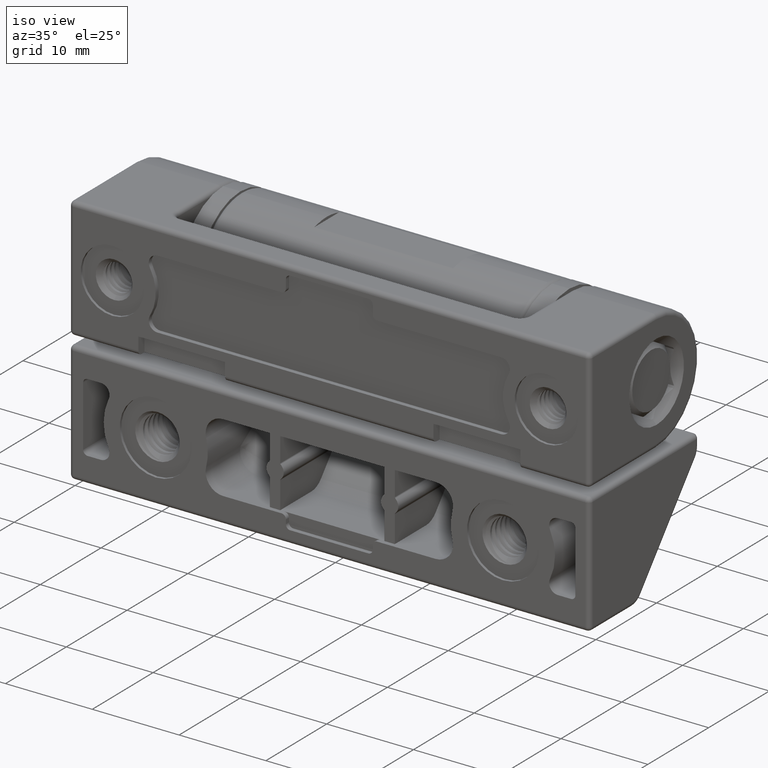
[diagram: clean part render]
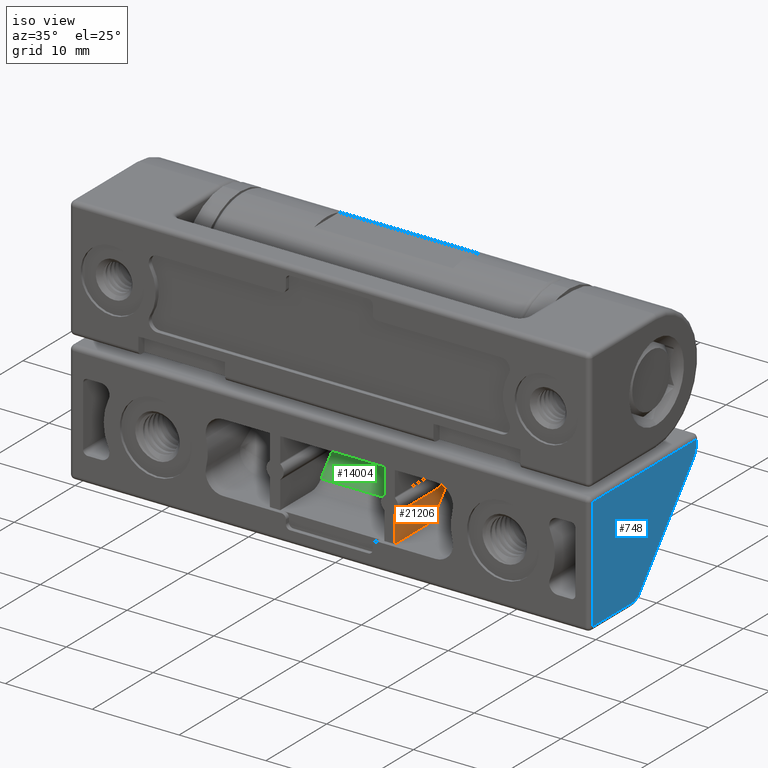
[diagram: same view with three faces highlighted in distinct colors, each labeled with its STEP entity id]
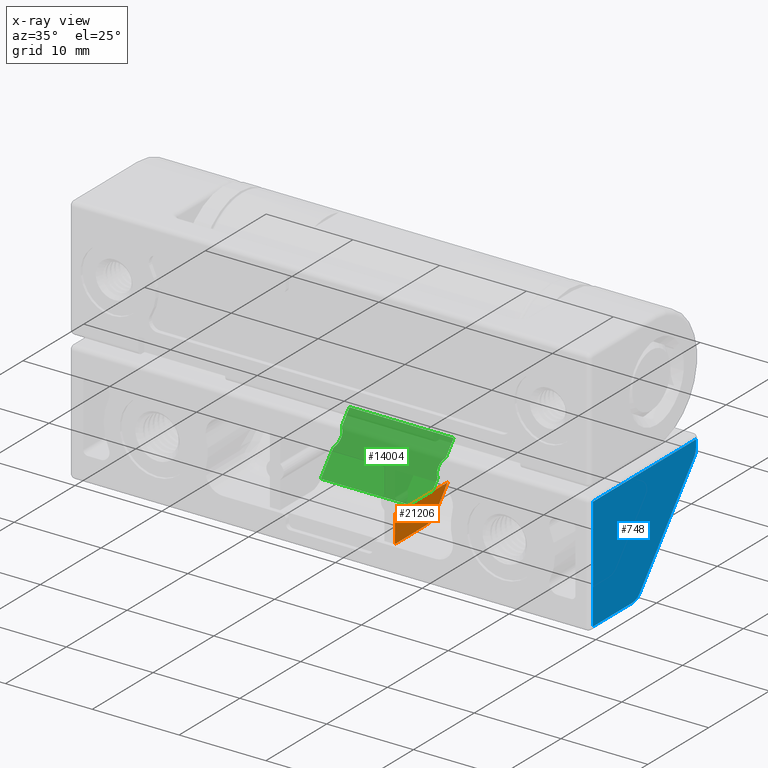
[diagram: x-ray of the same camera — body ghosted, the three highlighted faces saturated]
A machine part, iso view with three faces highlighted in distinct colors.
The next image is the same camera in x-ray (body ghosted, the three faces saturated) — at least one of them is partly hidden behind the body in this view.
Their STEP definitions:

[orange] entity #21206 — the highlighted planar face has unit normal (-1, 0, 0).
#93 = CARTESIAN_POINT ( 'NONE',  ( 7.200000000000000200, 989.0000000000000000, -15.89442719099995000 ) ) ;
#201 = VECTOR ( 'NONE', #2645, 1000.000000000000000 ) ;
#738 = ORIENTED_EDGE ( 'NONE', *, *, #17431, .T. ) ;
#2627 = ORIENTED_EDGE ( 'NONE', *, *, #17269, .T. ) ;
#2645 = DIRECTION ( 'NONE',  ( 4.934835877267119500E-015, 0.6401843996644799300, 0.7682212795973758500 ) ) ;
#2971 = PLANE ( 'NONE',  #12942 ) ;
#3280 = DIRECTION ( 'NONE',  ( 0.0000000000000000000, -1.000000000000000000, 0.0000000000000000000 ) ) ;
#3909 = FACE_OUTER_BOUND ( 'NONE', #12251, .T. ) ;
#4409 = ORIENTED_EDGE ( 'NONE', *, *, #5094, .T. ) ;
#4597 = EDGE_CURVE ( 'NONE', #12958, #17848, #18736, .T. ) ;
#5094 = EDGE_CURVE ( 'NONE', #18037, #12958, #19066, .T. ) ;
#7363 = DIRECTION ( 'NONE',  ( 6.423716718513001100E-015, 0.0000000000000000000, 1.000000000000000000 ) ) ;
#9223 = CARTESIAN_POINT ( 'NONE',  ( 7.200000000000000200, -4.405124837952874900, -19.00000000000375200 ) ) ;
#10106 = CARTESIAN_POINT ( 'NONE',  ( 7.200000000000000200, -10.50000000000000000, -4.625076037329409900E-014 ) ) ;
#10291 = EDGE_CURVE ( 'NONE', #18615, #17848, #25382, .T. ) ;
#10507 = AXIS2_PLACEMENT_3D ( 'NONE', #11994, #27200, #14184 ) ;
#10705 = ORIENTED_EDGE ( 'NONE', *, *, #10291, .F. ) ;
#11800 = LINE ( 'NONE', #9223, #201 ) ;
#11994 = CARTESIAN_POINT ( 'NONE',  ( 7.200000000000000200, -5.341874729918630200, -17.00000000000000000 ) ) ;
#12251 = EDGE_LOOP ( 'NONE', ( #19206, #10705, #738, #2627, #4409 ) ) ;
#12942 = AXIS2_PLACEMENT_3D ( 'NONE', #18235, #20435, #7363 ) ;
#12958 = VERTEX_POINT ( 'NONE', #27266 ) ;
#13807 = VECTOR ( 'NONE', #3280, 1000.000000000000000 ) ;
#14184 = DIRECTION ( 'NONE',  ( 6.505213034913026600E-015, -4.336808689942017700E-015, 1.000000000000000000 ) ) ;
#14225 = CARTESIAN_POINT ( 'NONE',  ( 7.200000000000000200, -5.341874729918630200, -19.00000000000000000 ) ) ;
#16356 = CARTESIAN_POINT ( 'NONE',  ( 7.200000000000000200, 989.0000000000000000, -19.00000000000000000 ) ) ;
#17269 = EDGE_CURVE ( 'NONE', #27496, #18037, #11800, .T. ) ;
#17431 = EDGE_CURVE ( 'NONE', #18615, #27496, #21360, .T. ) ;
#17538 = DIRECTION ( 'NONE',  ( 0.0000000000000000000, -1.000000000000000000, 0.0000000000000000000 ) ) ;
#17769 = CARTESIAN_POINT ( 'NONE',  ( 7.200000000000000200, -1.817147497116370100, -15.89442719099995000 ) ) ;
#17848 = VERTEX_POINT ( 'NONE', #26045 ) ;
#18037 = VERTEX_POINT ( 'NONE', #17769 ) ;
#18044 = VECTOR ( 'NONE', #25351, 1000.000000000000000 ) ;
#18235 = CARTESIAN_POINT ( 'NONE',  ( 7.200000000000000200, 989.0000000000000000, -15.89442719099995000 ) ) ;
#18615 = VERTEX_POINT ( 'NONE', #14225 ) ;
#18736 = LINE ( 'NONE', #10106, #18044 ) ;
#19066 = LINE ( 'NONE', #93, #24152 ) ;
#19206 = ORIENTED_EDGE ( 'NONE', *, *, #4597, .T. ) ;
#20435 = DIRECTION ( 'NONE',  ( -1.000000000000000000, 0.0000000000000000000, 6.423716718513001100E-015 ) ) ;
#21206 = ADVANCED_FACE ( 'NONE', ( #3909 ), #2971, .F. ) ;
#21360 = CIRCLE ( 'NONE', #10507, 2.000000000000000000 ) ;
#24152 = VECTOR ( 'NONE', #17538, 1000.000000000000000 ) ;
#25351 = DIRECTION ( 'NONE',  ( -6.423716718513001100E-015, -0.0000000000000000000, -1.000000000000000000 ) ) ;
#25382 = LINE ( 'NONE', #16356, #13807 ) ;
#26045 = CARTESIAN_POINT ( 'NONE',  ( 7.200000000000000200, -10.50000000000000000, -19.00000000000000000 ) ) ;
#26986 = CARTESIAN_POINT ( 'NONE',  ( 7.200000000000000200, -3.805432170723874700, -18.28036879932895100 ) ) ;
#27200 = DIRECTION ( 'NONE',  ( 1.000000000000000000, -0.0000000000000000000, -6.423716718513001100E-015 ) ) ;
#27266 = CARTESIAN_POINT ( 'NONE',  ( 7.200000000000000200, -10.50000000000000000, -15.89442719099995000 ) ) ;
#27496 = VERTEX_POINT ( 'NONE', #26986 ) ;

[blue] entity #748 — the highlighted planar face has unit normal (-1, 0, 0).
#428 = CIRCLE ( 'NONE', #3823, 1.500000000000001300 ) ;
#748 = ADVANCED_FACE ( 'NONE', ( #26243 ), #21563, .F. ) ;
#880 = VERTEX_POINT ( 'NONE', #10317 ) ;
#1350 = AXIS2_PLACEMENT_3D ( 'NONE', #1461, #3643, #16075 ) ;
#1435 = CARTESIAN_POINT ( 'NONE',  ( 30.00000000000000000, -3.936749891965300100, -20.00000000000000000 ) ) ;
#1461 = CARTESIAN_POINT ( 'NONE',  ( 30.00000000000000000, 0.0000000000000000000, 0.0000000000000000000 ) ) ;
#2278 = CARTESIAN_POINT ( 'NONE',  ( 30.00000000000000000, 6.499999999999920100, -8.500000000000000000 ) ) ;
#2856 = CARTESIAN_POINT ( 'NONE',  ( 30.00000000000000000, 6.499999999999920100, -9.275900129641740900 ) ) ;
#3207 = CIRCLE ( 'NONE', #14112, 1.499999999999999600 ) ;
#3453 = ORIENTED_EDGE ( 'NONE', *, *, #27796, .T. ) ;
#3619 = DIRECTION ( 'NONE',  ( 0.0000000000000000000, -1.734723475976805500E-015, 1.000000000000000000 ) ) ;
#3643 = DIRECTION ( 'NONE',  ( -1.000000000000000000, 0.0000000000000000000, 0.0000000000000000000 ) ) ;
#3702 = ORIENTED_EDGE ( 'NONE', *, *, #10826, .T. ) ;
#3823 = AXIS2_PLACEMENT_3D ( 'NONE', #1435, #16695, #3619 ) ;
#4387 = EDGE_CURVE ( 'NONE', #27939, #15247, #4730, .T. ) ;
#4406 = CARTESIAN_POINT ( 'NONE',  ( 30.00000000000000000, -3.936749891965300100, -21.50000000000000000 ) ) ;
#4730 = LINE ( 'NONE', #18137, #9849 ) ;
#4841 = CARTESIAN_POINT ( 'NONE',  ( 30.00000000000000000, 6.152331919395980000, -10.23617672913846000 ) ) ;
#5727 = ORIENTED_EDGE ( 'NONE', *, *, #23610, .T. ) ;
#5865 = CARTESIAN_POINT ( 'NONE',  ( 30.00000000000000000, -10.49999999999650100, -8.500000000000000000 ) ) ;
#6448 = VECTOR ( 'NONE', #6604, 1000.000000000000000 ) ;
#6604 = DIRECTION ( 'NONE',  ( 0.0000000000000000000, 1.000000000000000000, 0.0000000000000000000 ) ) ;
#7044 = VECTOR ( 'NONE', #15332, 1000.000000000000000 ) ;
#7126 = ORIENTED_EDGE ( 'NONE', *, *, #4387, .T. ) ;
#7267 = DIRECTION ( 'NONE',  ( 0.0000000000000000000, 0.0000000000000000000, -1.000000000000000000 ) ) ;
#7730 = EDGE_LOOP ( 'NONE', ( #8805, #7126, #17929, #5727, #3453, #3702, #13611 ) ) ;
#7738 = EDGE_CURVE ( 'NONE', #13627, #21006, #23754, .T. ) ;
#8058 = DIRECTION ( 'NONE',  ( 0.0000000000000000000, 0.6401843996644799300, 0.7682212795973758500 ) ) ;
#8805 = ORIENTED_EDGE ( 'NONE', *, *, #8938, .T. ) ;
#8938 = EDGE_CURVE ( 'NONE', #21006, #27939, #16575, .T. ) ;
#9317 = VERTEX_POINT ( 'NONE', #4841 ) ;
#9849 = VECTOR ( 'NONE', #7267, 1000.000000000000000 ) ;
#10317 = CARTESIAN_POINT ( 'NONE',  ( 30.00000000000000000, -3.936749891965300100, -21.50000000000000000 ) ) ;
#10553 = LINE ( 'NONE', #25383, #21474 ) ;
#10826 = EDGE_CURVE ( 'NONE', #9317, #13627, #3207, .T. ) ;
#10900 = DIRECTION ( 'NONE',  ( 1.000000000000000000, -0.0000000000000000000, -0.0000000000000000000 ) ) ;
#12093 = CARTESIAN_POINT ( 'NONE',  ( 30.00000000000000000, -2.784417972569235300, -20.96027659949669800 ) ) ;
#12476 = VERTEX_POINT ( 'NONE', #12093 ) ;
#12601 = DIRECTION ( 'NONE',  ( 0.0000000000000000000, -1.000000000000000000, 0.0000000000000000000 ) ) ;
#12947 = LINE ( 'NONE', #4406, #6448 ) ;
#13384 = CARTESIAN_POINT ( 'NONE',  ( 30.00000000000000000, 6.499999999999920100, -8.500000000000000000 ) ) ;
#13611 = ORIENTED_EDGE ( 'NONE', *, *, #7738, .T. ) ;
#13627 = VERTEX_POINT ( 'NONE', #2856 ) ;
#14112 = AXIS2_PLACEMENT_3D ( 'NONE', #23949, #10900, #26119 ) ;
#15247 = VERTEX_POINT ( 'NONE', #27272 ) ;
#15332 = DIRECTION ( 'NONE',  ( 0.0000000000000000000, 0.0000000000000000000, 1.000000000000000000 ) ) ;
#16075 = DIRECTION ( 'NONE',  ( 0.0000000000000000000, 0.0000000000000000000, 1.000000000000000000 ) ) ;
#16575 = LINE ( 'NONE', #23459, #22380 ) ;
#16695 = DIRECTION ( 'NONE',  ( 1.000000000000000000, -0.0000000000000000000, -0.0000000000000000000 ) ) ;
#17929 = ORIENTED_EDGE ( 'NONE', *, *, #28125, .T. ) ;
#18137 = CARTESIAN_POINT ( 'NONE',  ( 30.00000000000000000, -10.49999999999650100, -21.50000000000000000 ) ) ;
#21006 = VERTEX_POINT ( 'NONE', #13384 ) ;
#21474 = VECTOR ( 'NONE', #8058, 1000.000000000000000 ) ;
#21563 = PLANE ( 'NONE',  #1350 ) ;
#22380 = VECTOR ( 'NONE', #12601, 1000.000000000000000 ) ;
#23459 = CARTESIAN_POINT ( 'NONE',  ( 30.00000000000000000, -10.49999999999650100, -8.500000000000000000 ) ) ;
#23610 = EDGE_CURVE ( 'NONE', #880, #12476, #428, .T. ) ;
#23754 = LINE ( 'NONE', #2278, #7044 ) ;
#23949 = CARTESIAN_POINT ( 'NONE',  ( 30.00000000000000000, 4.999999999999920100, -9.275900129641740900 ) ) ;
#25383 = CARTESIAN_POINT ( 'NONE',  ( 30.00000000000000000, 6.152331919395980000, -10.23617672913844100 ) ) ;
#26119 = DIRECTION ( 'NONE',  ( 0.0000000000000000000, 0.0000000000000000000, 1.000000000000000000 ) ) ;
#26243 = FACE_OUTER_BOUND ( 'NONE', #7730, .T. ) ;
#27272 = CARTESIAN_POINT ( 'NONE',  ( 30.00000000000000000, -10.49999999999650100, -21.50000000000000000 ) ) ;
#27796 = EDGE_CURVE ( 'NONE', #12476, #9317, #10553, .T. ) ;
#27939 = VERTEX_POINT ( 'NONE', #5865 ) ;
#28125 = EDGE_CURVE ( 'NONE', #15247, #880, #12947, .T. ) ;

[green] entity #14004 — the highlighted planar face has unit normal (0, 0.7682, -0.6402).
#243 = ORIENTED_EDGE ( 'NONE', *, *, #1743, .F. ) ;
#505 = CARTESIAN_POINT ( 'NONE',  ( -5.976407375475736700, -1.725026993798328700, -15.78388258701839100 ) ) ;
#990 = AXIS2_PLACEMENT_3D ( 'NONE', #2456, #19913, #6842 ) ;
#1192 = CARTESIAN_POINT ( 'NONE',  ( 5.933333333333320200, -0.4506615108665900100, -14.25464400750009900 ) ) ;
#1267 = ORIENTED_EDGE ( 'NONE', *, *, #3005, .F. ) ;
#1306 = EDGE_CURVE ( 'NONE', #10407, #14356, #8561, .T. ) ;
#1612 = VECTOR ( 'NONE', #26482, 1000.000000000000000 ) ;
#1743 = EDGE_CURVE ( 'NONE', #8571, #24664, #4525, .T. ) ;
#2456 = CARTESIAN_POINT ( 'NONE',  ( -984.4721359549998900, -4.405124837949745000, -19.00000000000000000 ) ) ;
#2750 = CARTESIAN_POINT ( 'NONE',  ( -6.000000000000012400, -1.768989253968293700, -15.83663729922235000 ) ) ;
#2759 = VECTOR ( 'NONE', #8613, 1000.000000000000000 ) ;
#2862 = CARTESIAN_POINT ( 'NONE',  ( -6.000000000000000000, -1.817147497116334800, -15.89442719099990200 ) ) ;
#2961 = CARTESIAN_POINT ( 'NONE',  ( -5.933333333333320200, -0.4506615108664789900, -14.25464400750009900 ) ) ;
#2985 = VERTEX_POINT ( 'NONE', #3526 ) ;
#3005 = EDGE_CURVE ( 'NONE', #3877, #20789, #25583, .T. ) ;
#3010 = VERTEX_POINT ( 'NONE', #25342 ) ;
#3063 = CARTESIAN_POINT ( 'NONE',  ( -6.000000000000000000, -0.3264355121165294900, -14.10557280900009900 ) ) ;
#3079 = LINE ( 'NONE', #8552, #13320 ) ;
#3382 = CARTESIAN_POINT ( 'NONE',  ( -6.000000000000000000, -4.405124837949745000, -19.00000000000000000 ) ) ;
#3526 = CARTESIAN_POINT ( 'NONE',  ( -5.933333333333320200, -0.4506615108664789900, -14.25464400750009900 ) ) ;
#3877 = VERTEX_POINT ( 'NONE', #8296 ) ;
#3942 = CARTESIAN_POINT ( 'NONE',  ( -6.000000000000000000, -3.805432170723880100, -18.28036879932895100 ) ) ;
#4525 =( BOUNDED_CURVE ( )  B_SPLINE_CURVE ( 3, ( #13444, #2750, #505, #20225 ),
 .UNSPECIFIED., .F., .F. ) 
 B_SPLINE_CURVE_WITH_KNOTS ( ( 4, 4 ),
 ( 1.570796326794700500, 2.411864997362366000 ),
 .UNSPECIFIED. ) 
 CURVE ( )  GEOMETRIC_REPRESENTATION_ITEM ( )  RATIONAL_B_SPLINE_CURVE ( ( 1.000000000000000000, 0.9419139527835538300, 0.9419139527835538300, 1.000000000000000000 ) ) 
 REPRESENTATION_ITEM ( '' )  );
#4648 = VERTEX_POINT ( 'NONE', #12419 ) ;
#4690 = CARTESIAN_POINT ( 'NONE',  ( 5.976407375475584000, -1.725026993798278700, -15.78388258701837700 ) ) ;
#4790 = CARTESIAN_POINT ( 'NONE',  ( 5.933333333333219900, -1.692921498366305000, -15.74535599249995200 ) ) ;
#5115 = ORIENTED_EDGE ( 'NONE', *, *, #1306, .F. ) ;
#5148 = CARTESIAN_POINT ( 'NONE',  ( -5.457142857142974500, -1.337990073366356300, -15.31943828250002700 ) ) ;
#5161 = CARTESIAN_POINT ( 'NONE',  ( -5.976407375475699400, -0.4185560154345140900, -14.21611741298168100 ) ) ;
#5625 = CARTESIAN_POINT ( 'NONE',  ( 5.999999999999942300, -0.3745937552645312000, -14.16336270077770000 ) ) ;
#6184 = CARTESIAN_POINT ( 'NONE',  ( -6.000000000000000000, 0.8947214956631840400, -12.64018439966447900 ) ) ;
#6286 =( BOUNDED_CURVE ( )  B_SPLINE_CURVE ( 3, ( #2961, #16018, #5148, #20422 ),
 .UNSPECIFIED., .F., .F. ) 
 B_SPLINE_CURVE_WITH_KNOTS ( ( 4, 4 ),
 ( 3.871320309816867100, 5.553457650952645400 ),
 .UNSPECIFIED. ) 
 CURVE ( )  GEOMETRIC_REPRESENTATION_ITEM ( )  RATIONAL_B_SPLINE_CURVE ( ( 1.000000000000000000, 0.7777777777777981100, 0.7777777777777981100, 1.000000000000000000 ) ) 
 REPRESENTATION_ITEM ( '' )  );
#6817 = VERTEX_POINT ( 'NONE', #3942 ) ;
#6842 = DIRECTION ( 'NONE',  ( 0.0000000000000000000, 0.6401843996644798200, 0.7682212795973758500 ) ) ;
#6878 = CARTESIAN_POINT ( 'NONE',  ( 15.52786404500039900, -3.805432170723880100, -18.28036879932895100 ) ) ;
#7067 = LINE ( 'NONE', #11073, #18675 ) ;
#7238 = EDGE_CURVE ( 'NONE', #6817, #14356, #7396, .T. ) ;
#7396 = LINE ( 'NONE', #6878, #1612 ) ;
#7567 = FACE_OUTER_BOUND ( 'NONE', #26263, .T. ) ;
#8296 = CARTESIAN_POINT ( 'NONE',  ( 5.999999999999889900, 0.8947214956631840400, -12.64018439966447900 ) ) ;
#8552 = CARTESIAN_POINT ( 'NONE',  ( -6.000000000000000000, -4.405124837949745000, -19.00000000000000000 ) ) ;
#8561 = LINE ( 'NONE', #10120, #2759 ) ;
#8571 = VERTEX_POINT ( 'NONE', #2862 ) ;
#8603 = EDGE_CURVE ( 'NONE', #2985, #24664, #6286, .T. ) ;
#8613 = DIRECTION ( 'NONE',  ( -4.720277795646809800E-015, -0.6401843996644799300, -0.7682212795973758500 ) ) ;
#9030 = VECTOR ( 'NONE', #18644, 1000.000000000000000 ) ;
#9855 = CARTESIAN_POINT ( 'NONE',  ( 5.457142857142890200, -1.337990073366289300, -15.31943828249994300 ) ) ;
#9999 = CARTESIAN_POINT ( 'NONE',  ( 5.933333333333320200, -0.4506615108665900100, -14.25464400750009900 ) ) ;
#10120 = CARTESIAN_POINT ( 'NONE',  ( 5.999999999999889900, -4.405124837952739900, -19.00000000000360200 ) ) ;
#10407 = VERTEX_POINT ( 'NONE', #16448 ) ;
#10411 = ORIENTED_EDGE ( 'NONE', *, *, #24298, .T. ) ;
#10619 = ORIENTED_EDGE ( 'NONE', *, *, #26325, .F. ) ;
#11011 = ORIENTED_EDGE ( 'NONE', *, *, #23534, .F. ) ;
#11073 = CARTESIAN_POINT ( 'NONE',  ( -15.52786404500050000, 0.8947214956631840400, -12.64018439966447900 ) ) ;
#11166 = ORIENTED_EDGE ( 'NONE', *, *, #15670, .T. ) ;
#11378 = CARTESIAN_POINT ( 'NONE',  ( 5.999999999999870300, -1.817147497116255100, -15.89442719099995000 ) ) ;
#12111 = ORIENTED_EDGE ( 'NONE', *, *, #26871, .F. ) ;
#12305 = CARTESIAN_POINT ( 'NONE',  ( 5.999999999999889900, -4.405124837952739900, -19.00000000000360200 ) ) ;
#12419 = CARTESIAN_POINT ( 'NONE',  ( 5.933333333333320200, -0.4506615108665900100, -14.25464400750009900 ) ) ;
#13313 = VECTOR ( 'NONE', #27510, 1000.000000000000000 ) ;
#13320 = VECTOR ( 'NONE', #27772, 1000.000000000000000 ) ;
#13444 = CARTESIAN_POINT ( 'NONE',  ( -6.000000000000000000, -1.817147497116334800, -15.89442719099990200 ) ) ;
#13882 = ORIENTED_EDGE ( 'NONE', *, *, #8603, .T. ) ;
#14004 = ADVANCED_FACE ( 'NONE', ( #7567 ), #17715, .F. ) ;
#14169 = LINE ( 'NONE', #3382, #9030 ) ;
#14255 = CARTESIAN_POINT ( 'NONE',  ( 5.457142857142883100, -0.8055929358664019000, -14.68056171750008000 ) ) ;
#14269 = VERTEX_POINT ( 'NONE', #20390 ) ;
#14356 = VERTEX_POINT ( 'NONE', #25218 ) ;
#14662 = ORIENTED_EDGE ( 'NONE', *, *, #7238, .T. ) ;
#15670 = EDGE_CURVE ( 'NONE', #3877, #17066, #7067, .T. ) ;
#16018 = CARTESIAN_POINT ( 'NONE',  ( -5.457142857142931900, -0.8055929358664418700, -14.68056171750012800 ) ) ;
#16129 = CARTESIAN_POINT ( 'NONE',  ( -6.000000000000002700, -0.3745937552645405800, -14.16336270077771100 ) ) ;
#16373 = ORIENTED_EDGE ( 'NONE', *, *, #20327, .F. ) ;
#16448 = CARTESIAN_POINT ( 'NONE',  ( 5.999999999999870300, -1.817147497116255100, -15.89442719099995000 ) ) ;
#17066 = VERTEX_POINT ( 'NONE', #6184 ) ;
#17661 = DIRECTION ( 'NONE',  ( -1.000000000000000000, -0.0000000000000000000, -0.0000000000000000000 ) ) ;
#17715 = PLANE ( 'NONE',  #990 ) ;
#18471 =( BOUNDED_CURVE ( )  B_SPLINE_CURVE ( 3, ( #25103, #9855, #14255, #1192 ),
 .UNSPECIFIED., .F., .F. ) 
 B_SPLINE_CURVE_WITH_KNOTS ( ( 4, 4 ),
 ( 0.7297276562270310600, 2.411864997362742200 ),
 .UNSPECIFIED. ) 
 CURVE ( )  GEOMETRIC_REPRESENTATION_ITEM ( )  RATIONAL_B_SPLINE_CURVE ( ( 1.000000000000000000, 0.7777777777778147600, 0.7777777777778147600, 1.000000000000000000 ) ) 
 REPRESENTATION_ITEM ( '' )  );
#18644 = DIRECTION ( 'NONE',  ( 0.0000000000000000000, 0.6401843996644799300, 0.7682212795973758500 ) ) ;
#18675 = VECTOR ( 'NONE', #17661, 1000.000000000000000 ) ;
#19674 = CARTESIAN_POINT ( 'NONE',  ( 5.999999999999929800, -0.3264355121165065100, -14.10557280900009900 ) ) ;
#19913 = DIRECTION ( 'NONE',  ( 0.0000000000000000000, 0.7682212795973758500, -0.6401843996644798200 ) ) ;
#20225 = CARTESIAN_POINT ( 'NONE',  ( -5.933333333333420600, -1.692921498366305000, -15.74535599249995200 ) ) ;
#20327 = EDGE_CURVE ( 'NONE', #3010, #17066, #14169, .T. ) ;
#20390 = CARTESIAN_POINT ( 'NONE',  ( 5.933333333333219900, -1.692921498366305000, -15.74535599249995200 ) ) ;
#20422 = CARTESIAN_POINT ( 'NONE',  ( -5.933333333333420600, -1.692921498366305000, -15.74535599249995200 ) ) ;
#20789 = VERTEX_POINT ( 'NONE', #19674 ) ;
#20890 = CARTESIAN_POINT ( 'NONE',  ( 5.999999999999929800, -0.3264355121165065100, -14.10557280900009900 ) ) ;
#21167 = ORIENTED_EDGE ( 'NONE', *, *, #21236, .F. ) ;
#21236 = EDGE_CURVE ( 'NONE', #2985, #3010, #24906, .T. ) ;
#22627 = CARTESIAN_POINT ( 'NONE',  ( -5.933333333333320200, -0.4506615108664789900, -14.25464400750009900 ) ) ;
#23077 = CARTESIAN_POINT ( 'NONE',  ( 5.976407375475643500, -0.4185560154345062700, -14.21611741298167300 ) ) ;
#23534 = EDGE_CURVE ( 'NONE', #20789, #4648, #26635, .T. ) ;
#24113 =( BOUNDED_CURVE ( )  B_SPLINE_CURVE ( 3, ( #4790, #4690, #24413, #11378 ),
 .UNSPECIFIED., .F., .F. ) 
 B_SPLINE_CURVE_WITH_KNOTS ( ( 4, 4 ),
 ( 3.871320309816823600, 4.712388980384689700 ),
 .UNSPECIFIED. ) 
 CURVE ( )  GEOMETRIC_REPRESENTATION_ITEM ( )  RATIONAL_B_SPLINE_CURVE ( ( 1.000000000000000000, 0.9419139527835265200, 0.9419139527835265200, 1.000000000000000000 ) ) 
 REPRESENTATION_ITEM ( '' )  );
#24298 = EDGE_CURVE ( 'NONE', #14269, #4648, #18471, .T. ) ;
#24413 = CARTESIAN_POINT ( 'NONE',  ( 5.999999999999882800, -1.768989253968248600, -15.83663729922234300 ) ) ;
#24664 = VERTEX_POINT ( 'NONE', #28120 ) ;
#24906 =( BOUNDED_CURVE ( )  B_SPLINE_CURVE ( 3, ( #22627, #5161, #16129, #3063 ),
 .UNSPECIFIED., .F., .F. ) 
 B_SPLINE_CURVE_WITH_KNOTS ( ( 4, 4 ),
 ( 0.7297276562269540100, 1.570796326794896600 ),
 .UNSPECIFIED. ) 
 CURVE ( )  GEOMETRIC_REPRESENTATION_ITEM ( )  RATIONAL_B_SPLINE_CURVE ( ( 1.000000000000000000, 0.9419139527835162000, 0.9419139527835162000, 1.000000000000000000 ) ) 
 REPRESENTATION_ITEM ( '' )  );
#25103 = CARTESIAN_POINT ( 'NONE',  ( 5.933333333333219900, -1.692921498366305000, -15.74535599249995200 ) ) ;
#25218 = CARTESIAN_POINT ( 'NONE',  ( 5.999999999999880100, -3.805432170723880100, -18.28036879932895100 ) ) ;
#25342 = CARTESIAN_POINT ( 'NONE',  ( -6.000000000000000000, -0.3264355121165294900, -14.10557280900009900 ) ) ;
#25583 = LINE ( 'NONE', #12305, #13313 ) ;
#26263 = EDGE_LOOP ( 'NONE', ( #16373, #21167, #13882, #243, #10619, #14662, #5115, #12111, #10411, #11011, #1267, #11166 ) ) ;
#26325 = EDGE_CURVE ( 'NONE', #6817, #8571, #3079, .T. ) ;
#26482 = DIRECTION ( 'NONE',  ( 1.000000000000000000, 0.0000000000000000000, 0.0000000000000000000 ) ) ;
#26635 =( BOUNDED_CURVE ( )  B_SPLINE_CURVE ( 3, ( #20890, #5625, #23077, #9999 ),
 .UNSPECIFIED., .F., .F. ) 
 B_SPLINE_CURVE_WITH_KNOTS ( ( 4, 4 ),
 ( 4.712388980384632800, 5.553457650952552200 ),
 .UNSPECIFIED. ) 
 CURVE ( )  GEOMETRIC_REPRESENTATION_ITEM ( )  RATIONAL_B_SPLINE_CURVE ( ( 1.000000000000000000, 0.9419139527835194100, 0.9419139527835194100, 1.000000000000000000 ) ) 
 REPRESENTATION_ITEM ( '' )  );
#26871 = EDGE_CURVE ( 'NONE', #14269, #10407, #24113, .T. ) ;
#27510 = DIRECTION ( 'NONE',  ( -4.720277795646790900E-015, -0.6401843996644799300, -0.7682212795973758500 ) ) ;
#27772 = DIRECTION ( 'NONE',  ( 0.0000000000000000000, 0.6401843996644799300, 0.7682212795973758500 ) ) ;
#28120 = CARTESIAN_POINT ( 'NONE',  ( -5.933333333333420600, -1.692921498366305000, -15.74535599249995200 ) ) ;